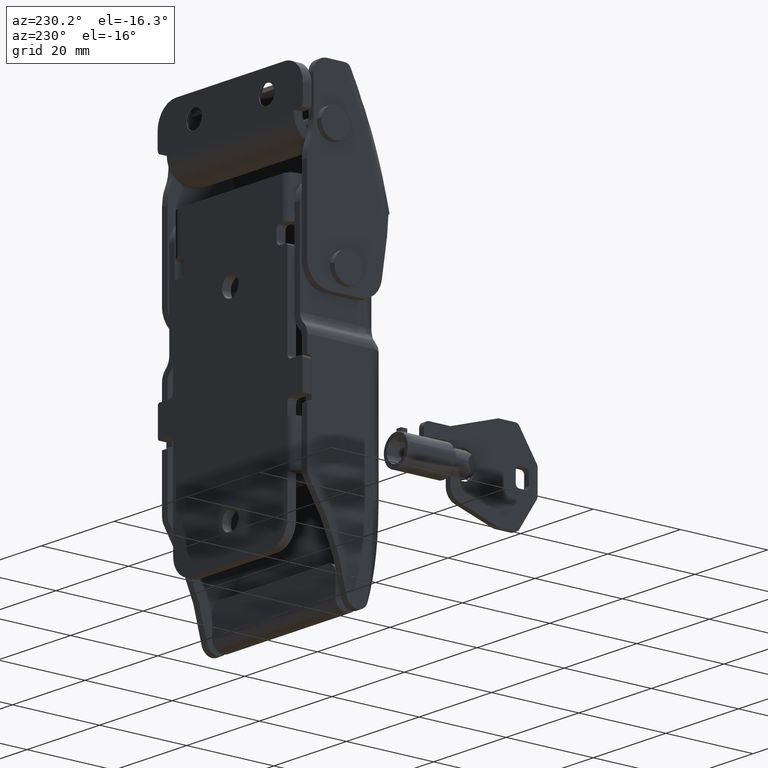
[diagram: clean part render]
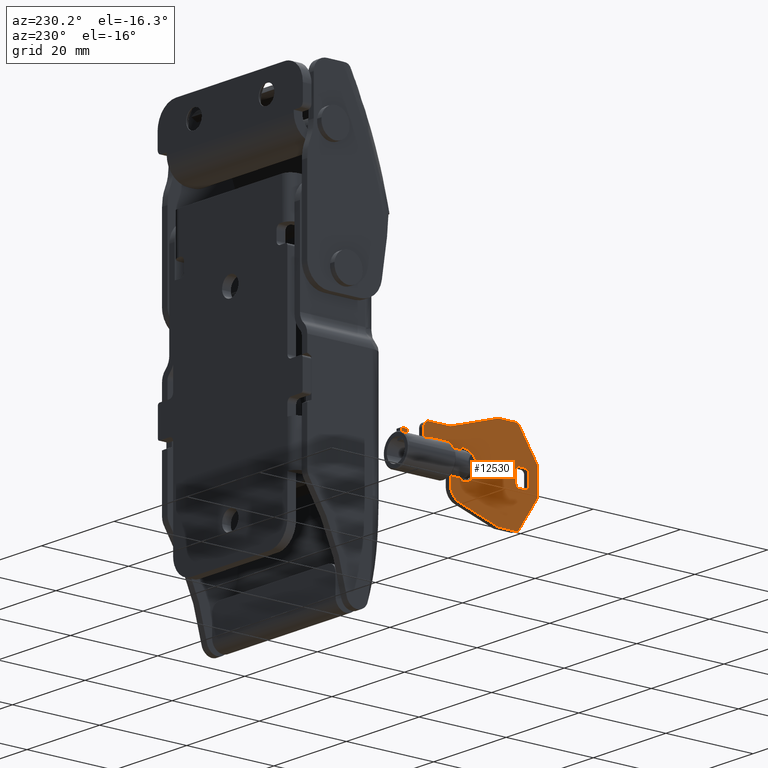
[diagram: same view with one face highlighted and labeled with its STEP entity id]
A machine part, auxiliary view. The second image highlights one B-rep face of the part: STEP entity #12530.
In plain terms, the highlighted face is a freeform B-spline surface patch.
Its self-contained STEP definition (entity closure, byte-faithful):
#10269=CARTESIAN_POINT('',(-0.650000000143480,-45.300000000002498,-19.560886742607501));
#10270=VERTEX_POINT('',#10269);
#10276=CARTESIAN_POINT('',(-0.650000000143480,-38.900000000002450,-19.560886742607501));
#10277=VERTEX_POINT('',#10276);
#10278=CARTESIAN_POINT('',(-0.650000000143480,-45.300000000002498,-19.560886742607501));
#10279=CARTESIAN_POINT('',(-0.650000000143480,-38.900000000002450,-19.560886742607501));
#10280=QUASI_UNIFORM_CURVE('',1,(#10278,#10279),.UNSPECIFIED.,.F.,.U.);
#10281=EDGE_CURVE('',#10270,#10277,#10280,.T.);
#10463=CARTESIAN_POINT('',(-0.650000000143480,-50.000000000002501,-25.620591536580601));
#10464=VERTEX_POINT('',#10463);
#10478=CARTESIAN_POINT('',(-0.650000000143530,-52.500000000002487,-25.620591536580601));
#10479=VERTEX_POINT('',#10478);
#10480=CARTESIAN_POINT('',(-0.650000000143480,-50.000000000002501,-25.620591536580601));
#10481=CARTESIAN_POINT('',(-0.650000000143530,-52.500000000002487,-25.620591536580601));
#10482=QUASI_UNIFORM_CURVE('',1,(#10480,#10481),.UNSPECIFIED.,.F.,.U.);
#10483=EDGE_CURVE('',#10464,#10479,#10482,.T.);
#10509=CARTESIAN_POINT('',(-0.650000000143480,-52.500000000002487,-20.379408464240999));
#10510=VERTEX_POINT('',#10509);
#10524=CARTESIAN_POINT('',(-0.650000000143530,-50.000000000002402,-20.379408464240999));
#10525=VERTEX_POINT('',#10524);
#10526=CARTESIAN_POINT('',(-0.650000000143480,-52.500000000002487,-20.379408464240999));
#10527=CARTESIAN_POINT('',(-0.650000000143530,-50.000000000002402,-20.379408464240999));
#10528=QUASI_UNIFORM_CURVE('',1,(#10526,#10527),.UNSPECIFIED.,.F.,.U.);
#10529=EDGE_CURVE('',#10510,#10525,#10528,.T.);
#10721=CARTESIAN_POINT('',(-0.650000000143480,-60.852052451472197,-13.047074220318001));
#10722=VERTEX_POINT('',#10721);
#10728=CARTESIAN_POINT('',(-0.650000000143480,-61.155256108749199,-13.000000000331260));
#10729=VERTEX_POINT('',#10728);
#10730=CARTESIAN_POINT('',(-0.650000000143480,-61.155256108749199,-13.000000000331260));
#10731=CARTESIAN_POINT('',(-0.650000000143480,-61.000000000001968,-13.000000000331264));
#10732=CARTESIAN_POINT('',(-0.650000000143480,-60.852052451472211,-13.047074220318009));
#10740=(BOUNDED_CURVE()B_SPLINE_CURVE(2,(#10730,#10731,#10732),.UNSPECIFIED.,.F.,.U.)CURVE()GEOMETRIC_REPRESENTATION_ITEM()QUASI_UNIFORM_CURVE()RATIONAL_B_SPLINE_CURVE((1.0,0.988161368404282,1.0))REPRESENTATION_ITEM(''));
#10741=EDGE_CURVE('',#10729,#10722,#10740,.T.);
#10782=CARTESIAN_POINT('',(-0.650000000143480,-64.954048787353102,-13.000000000331260));
#10783=VERTEX_POINT('',#10782);
#10789=CARTESIAN_POINT('',(-0.650000000143480,-65.795227262729696,-13.459242409017760));
#10790=VERTEX_POINT('',#10789);
#10791=CARTESIAN_POINT('',(-0.650000000143480,-65.795227262729668,-13.459242409017779));
#10792=CARTESIAN_POINT('',(-0.650000000143480,-65.500000000002615,-13.000000000331262));
#10793=CARTESIAN_POINT('',(-0.650000000143480,-64.954048787353102,-13.000000000331260));
#10801=(BOUNDED_CURVE()B_SPLINE_CURVE(2,(#10791,#10792,#10793),.UNSPECIFIED.,.F.,.U.)CURVE()GEOMETRIC_REPRESENTATION_ITEM()QUASI_UNIFORM_CURVE()RATIONAL_B_SPLINE_CURVE((1.0,0.877712251057680,1.0))REPRESENTATION_ITEM(''));
#10802=EDGE_CURVE('',#10790,#10783,#10801,.T.);
#10843=CARTESIAN_POINT('',(-0.650000000143480,-69.841178475378996,-19.752944295361349));
#10844=VERTEX_POINT('',#10843);
#10850=CARTESIAN_POINT('',(-0.650000000143480,-70.000000000002501,-20.293701886674800));
#10851=VERTEX_POINT('',#10850);
#10852=CARTESIAN_POINT('',(-0.650000000143480,-70.000000000002501,-20.293701886674800));
#10853=CARTESIAN_POINT('',(-0.650000000143480,-70.000000000002501,-20.000000000331109));
#10854=CARTESIAN_POINT('',(-0.650000000143480,-69.841178475379053,-19.752944295361310));
#10862=(BOUNDED_CURVE()B_SPLINE_CURVE(2,(#10852,#10853,#10854),.UNSPECIFIED.,.F.,.U.)CURVE()GEOMETRIC_REPRESENTATION_ITEM()QUASI_UNIFORM_CURVE()RATIONAL_B_SPLINE_CURVE((1.0,0.959473416874213,1.0))REPRESENTATION_ITEM(''));
#10863=EDGE_CURVE('',#10851,#10844,#10862,.T.);
#10904=CARTESIAN_POINT('',(-0.650000000143480,-61.155256108749498,-33.000000000331248));
#10905=VERTEX_POINT('',#10904);
#10911=CARTESIAN_POINT('',(-0.650000000143480,-60.852052451472503,-32.952925780344508));
#10912=VERTEX_POINT('',#10911);
#10913=CARTESIAN_POINT('',(-0.650000000143480,-60.852052451472503,-32.952925780344501));
#10914=CARTESIAN_POINT('',(-0.650000000143480,-61.000000000002274,-33.000000000331255));
#10915=CARTESIAN_POINT('',(-0.650000000143480,-61.155256108749498,-33.000000000331248));
#10923=(BOUNDED_CURVE()B_SPLINE_CURVE(2,(#10913,#10914,#10915),.UNSPECIFIED.,.F.,.U.)CURVE()GEOMETRIC_REPRESENTATION_ITEM()QUASI_UNIFORM_CURVE()RATIONAL_B_SPLINE_CURVE((1.0,0.988161368404282,1.0))REPRESENTATION_ITEM(''));
#10924=EDGE_CURVE('',#10912,#10905,#10923,.T.);
#10965=CARTESIAN_POINT('',(-0.650000000143480,-65.795227262729412,-32.540757591644748));
#10966=VERTEX_POINT('',#10965);
#10972=CARTESIAN_POINT('',(-0.650000000143480,-64.954048787352804,-33.000000000331248));
#10973=VERTEX_POINT('',#10972);
#10974=CARTESIAN_POINT('',(-0.650000000143480,-64.954048787352804,-33.000000000331248));
#10975=CARTESIAN_POINT('',(-0.650000000143480,-65.500000000002331,-33.000000000331248));
#10976=CARTESIAN_POINT('',(-0.650000000143480,-65.795227262729384,-32.540757591644727));
#10984=(BOUNDED_CURVE()B_SPLINE_CURVE(2,(#10974,#10975,#10976),.UNSPECIFIED.,.F.,.U.)CURVE()GEOMETRIC_REPRESENTATION_ITEM()QUASI_UNIFORM_CURVE()RATIONAL_B_SPLINE_CURVE((1.0,0.877712251057680,1.0))REPRESENTATION_ITEM(''));
#10985=EDGE_CURVE('',#10973,#10966,#10984,.T.);
#11026=CARTESIAN_POINT('',(-0.650000000143480,-70.000000000002501,-25.706298113987302));
#11027=VERTEX_POINT('',#11026);
#11033=CARTESIAN_POINT('',(-0.650000000143480,-69.841178475378996,-26.247055705300749));
#11034=VERTEX_POINT('',#11033);
#11035=CARTESIAN_POINT('',(-0.650000000143480,-69.841178475379053,-26.247055705300799));
#11036=CARTESIAN_POINT('',(-0.650000000143480,-70.000000000002501,-26.000000000330989));
#11037=CARTESIAN_POINT('',(-0.650000000143480,-70.000000000002501,-25.706298113987302));
#11045=(BOUNDED_CURVE()B_SPLINE_CURVE(2,(#11035,#11036,#11037),.UNSPECIFIED.,.F.,.U.)CURVE()GEOMETRIC_REPRESENTATION_ITEM()QUASI_UNIFORM_CURVE()RATIONAL_B_SPLINE_CURVE((1.0,0.959473416874213,1.0))REPRESENTATION_ITEM(''));
#11046=EDGE_CURVE('',#11034,#11027,#11045,.T.);
#11070=CARTESIAN_POINT('',(-0.650000000149476,-67.200000000002490,-21.000000000331251));
#11071=VERTEX_POINT('',#11070);
#11094=CARTESIAN_POINT('',(-0.650000000149476,-68.000000000002501,-21.800000000331249));
#11095=VERTEX_POINT('',#11094);
#11101=CARTESIAN_POINT('',(-0.650000000149476,-67.200000000002490,-21.000000000331251));
#11102=CARTESIAN_POINT('',(-0.650000000149476,-68.000000000002487,-21.000000000331251));
#11103=CARTESIAN_POINT('',(-0.650000000149476,-68.000000000002487,-21.800000000331249));
#11111=(BOUNDED_CURVE()B_SPLINE_CURVE(2,(#11101,#11102,#11103),.UNSPECIFIED.,.F.,.U.)CURVE()GEOMETRIC_REPRESENTATION_ITEM()QUASI_UNIFORM_CURVE()RATIONAL_B_SPLINE_CURVE((1.0,0.707106781186548,1.0))REPRESENTATION_ITEM(''));
#11112=EDGE_CURVE('',#11071,#11095,#11111,.T.);
#11122=CARTESIAN_POINT('',(-0.650000000149476,-68.000000000002501,-24.200000000331300));
#11123=VERTEX_POINT('',#11122);
#11124=CARTESIAN_POINT('',(-0.650000000149476,-68.000000000002501,-24.200000000331300));
#11125=CARTESIAN_POINT('',(-0.650000000149476,-68.000000000002501,-21.800000000331249));
#11126=QUASI_UNIFORM_CURVE('',1,(#11124,#11125),.UNSPECIFIED.,.F.,.U.);
#11127=EDGE_CURVE('',#11123,#11095,#11126,.T.);
#11175=CARTESIAN_POINT('',(-0.650000000149476,-67.200000000002490,-25.000000000331251));
#11176=VERTEX_POINT('',#11175);
#11182=CARTESIAN_POINT('',(-0.650000000149476,-68.000000000002487,-24.200000000331300));
#11183=CARTESIAN_POINT('',(-0.650000000149476,-68.000000000002487,-25.000000000331298));
#11184=CARTESIAN_POINT('',(-0.650000000149476,-67.200000000002490,-25.000000000331301));
#11192=(BOUNDED_CURVE()B_SPLINE_CURVE(2,(#11182,#11183,#11184),.UNSPECIFIED.,.F.,.U.)CURVE()GEOMETRIC_REPRESENTATION_ITEM()QUASI_UNIFORM_CURVE()RATIONAL_B_SPLINE_CURVE((1.0,0.707106781186548,1.0))REPRESENTATION_ITEM(''));
#11193=EDGE_CURVE('',#11123,#11176,#11192,.T.);
#11203=CARTESIAN_POINT('',(-0.650000000149476,-65.800000000002498,-25.000000000331301));
#11204=VERTEX_POINT('',#11203);
#11205=CARTESIAN_POINT('',(-0.650000000149476,-65.800000000002498,-25.000000000331301));
#11206=CARTESIAN_POINT('',(-0.650000000149476,-67.200000000002490,-25.000000000331251));
#11207=QUASI_UNIFORM_CURVE('',1,(#11205,#11206),.UNSPECIFIED.,.F.,.U.);
#11208=EDGE_CURVE('',#11204,#11176,#11207,.T.);
#11256=CARTESIAN_POINT('',(-0.650000000149476,-65.000000000002402,-24.200000000331300));
#11257=VERTEX_POINT('',#11256);
#11263=CARTESIAN_POINT('',(-0.650000000149476,-65.800000000002498,-25.000000000331301));
#11264=CARTESIAN_POINT('',(-0.650000000149476,-65.000000000002501,-25.000000000331298));
#11265=CARTESIAN_POINT('',(-0.650000000149476,-65.000000000002501,-24.200000000331300));
#11273=(BOUNDED_CURVE()B_SPLINE_CURVE(2,(#11263,#11264,#11265),.UNSPECIFIED.,.F.,.U.)CURVE()GEOMETRIC_REPRESENTATION_ITEM()QUASI_UNIFORM_CURVE()RATIONAL_B_SPLINE_CURVE((1.0,0.707106781186548,1.0))REPRESENTATION_ITEM(''));
#11274=EDGE_CURVE('',#11204,#11257,#11273,.T.);
#11284=CARTESIAN_POINT('',(-0.650000000149476,-65.000000000002501,-21.800000000331249));
#11285=VERTEX_POINT('',#11284);
#11286=CARTESIAN_POINT('',(-0.650000000149476,-65.000000000002501,-21.800000000331249));
#11287=CARTESIAN_POINT('',(-0.650000000149476,-65.000000000002402,-24.200000000331300));
#11288=QUASI_UNIFORM_CURVE('',1,(#11286,#11287),.UNSPECIFIED.,.F.,.U.);
#11289=EDGE_CURVE('',#11285,#11257,#11288,.T.);
#11337=CARTESIAN_POINT('',(-0.650000000149476,-65.800000000002498,-21.000000000331251));
#11338=VERTEX_POINT('',#11337);
#11344=CARTESIAN_POINT('',(-0.650000000149476,-65.000000000002501,-21.800000000331249));
#11345=CARTESIAN_POINT('',(-0.650000000149476,-65.000000000002501,-21.000000000331251));
#11346=CARTESIAN_POINT('',(-0.650000000149476,-65.800000000002498,-21.000000000331251));
#11354=(BOUNDED_CURVE()B_SPLINE_CURVE(2,(#11344,#11345,#11346),.UNSPECIFIED.,.F.,.U.)CURVE()GEOMETRIC_REPRESENTATION_ITEM()QUASI_UNIFORM_CURVE()RATIONAL_B_SPLINE_CURVE((1.0,0.707106781186548,1.0))REPRESENTATION_ITEM(''));
#11355=EDGE_CURVE('',#11285,#11338,#11354,.T.);
#11365=CARTESIAN_POINT('',(-0.650000000149476,-67.200000000002490,-21.000000000331251));
#11366=CARTESIAN_POINT('',(-0.650000000149476,-65.800000000002498,-21.000000000331251));
#11367=QUASI_UNIFORM_CURVE('',1,(#11365,#11366),.UNSPECIFIED.,.F.,.U.);
#11368=EDGE_CURVE('',#11071,#11338,#11367,.T.);
#11385=CARTESIAN_POINT('',(-0.650000000143480,-45.100000000002403,-16.500000000331202));
#11386=VERTEX_POINT('',#11385);
#11387=CARTESIAN_POINT('',(-0.650000000143480,-50.000000000002402,-16.500000000331251));
#11388=VERTEX_POINT('',#11387);
#11389=CARTESIAN_POINT('',(-0.650000000143480,-45.100000000002403,-16.500000000331202));
#11390=CARTESIAN_POINT('',(-0.650000000143480,-50.000000000002402,-16.500000000331251));
#11391=QUASI_UNIFORM_CURVE('',1,(#11389,#11390),.UNSPECIFIED.,.F.,.U.);
#11392=EDGE_CURVE('',#11386,#11388,#11391,.T.);
#11430=CARTESIAN_POINT('',(-0.650000000143480,-43.900000000002450,-17.700000000331201));
#11431=VERTEX_POINT('',#11430);
#11432=CARTESIAN_POINT('',(-0.650000000143480,-43.900000000002400,-17.700000000331201));
#11433=CARTESIAN_POINT('',(-0.650000000143480,-43.900000000002400,-16.500000000331202));
#11434=CARTESIAN_POINT('',(-0.650000000143480,-45.100000000002403,-16.500000000331202));
#11442=(BOUNDED_CURVE()B_SPLINE_CURVE(2,(#11432,#11433,#11434),.UNSPECIFIED.,.F.,.U.)CURVE()GEOMETRIC_REPRESENTATION_ITEM()QUASI_UNIFORM_CURVE()RATIONAL_B_SPLINE_CURVE((1.0,0.707106781186547,1.0))REPRESENTATION_ITEM(''));
#11443=EDGE_CURVE('',#11431,#11386,#11442,.T.);
#11474=CARTESIAN_POINT('',(-0.650000000143480,-43.900000000002450,-19.556255671833501));
#11475=VERTEX_POINT('',#11474);
#11476=CARTESIAN_POINT('',(-0.650000000143480,-43.900000000002450,-19.556255671833501));
#11477=CARTESIAN_POINT('',(-0.650000000143480,-43.900000000002450,-17.700000000331201));
#11478=QUASI_UNIFORM_CURVE('',1,(#11476,#11477),.UNSPECIFIED.,.F.,.U.);
#11479=EDGE_CURVE('',#11475,#11431,#11478,.T.);
#11502=CARTESIAN_POINT('',(-0.650000000143480,-40.100000000002353,-19.556255671833501));
#11503=VERTEX_POINT('',#11502);
#11504=CARTESIAN_POINT('',(-0.650000000143480,-40.100000000002353,-19.556255671833501));
#11505=CARTESIAN_POINT('',(-0.650000000143480,-43.900000000002450,-19.556255671833501));
#11506=QUASI_UNIFORM_CURVE('',1,(#11504,#11505),.UNSPECIFIED.,.F.,.U.);
#11507=EDGE_CURVE('',#11503,#11475,#11506,.T.);
#11530=CARTESIAN_POINT('',(-0.650000000143480,-40.100000000002353,-18.800000000331249));
#11531=VERTEX_POINT('',#11530);
#11532=CARTESIAN_POINT('',(-0.650000000143480,-40.100000000002353,-18.800000000331249));
#11533=CARTESIAN_POINT('',(-0.650000000143480,-40.100000000002353,-19.556255671833501));
#11534=QUASI_UNIFORM_CURVE('',1,(#11532,#11533),.UNSPECIFIED.,.F.,.U.);
#11535=EDGE_CURVE('',#11531,#11503,#11534,.T.);
#11558=CARTESIAN_POINT('',(-0.650000000143480,-38.700000000002603,-18.800000000331249));
#11559=VERTEX_POINT('',#11558);
#11560=CARTESIAN_POINT('',(-0.650000000143480,-38.700000000002603,-18.800000000331249));
#11561=CARTESIAN_POINT('',(-0.650000000143480,-40.100000000002353,-18.800000000331249));
#11562=QUASI_UNIFORM_CURVE('',1,(#11560,#11561),.UNSPECIFIED.,.F.,.U.);
#11563=EDGE_CURVE('',#11559,#11531,#11562,.T.);
#11586=CARTESIAN_POINT('',(-0.650000000143480,-38.700000000002248,-19.350000000331050));
#11587=VERTEX_POINT('',#11586);
#11588=CARTESIAN_POINT('',(-0.650000000143480,-38.700000000002248,-19.350000000331050));
#11589=CARTESIAN_POINT('',(-0.650000000143480,-38.700000000002603,-18.800000000331249));
#11590=QUASI_UNIFORM_CURVE('',1,(#11588,#11589),.UNSPECIFIED.,.F.,.U.);
#11591=EDGE_CURVE('',#11587,#11559,#11590,.T.);
#11614=CARTESIAN_POINT('',(-0.650000000143480,-38.900000000002450,-19.450000000331102));
#11615=VERTEX_POINT('',#11614);
#11616=CARTESIAN_POINT('',(-0.650000000143480,-38.900000000002450,-19.450000000331102));
#11617=CARTESIAN_POINT('',(-0.650000000143480,-38.700000000002248,-19.350000000331050));
#11618=QUASI_UNIFORM_CURVE('',1,(#11616,#11617),.UNSPECIFIED.,.F.,.U.);
#11619=EDGE_CURVE('',#11615,#11587,#11618,.T.);
#11643=CARTESIAN_POINT('',(-0.650000000143480,-38.900000000002450,-19.560886742607501));
#11644=CARTESIAN_POINT('',(-0.650000000143480,-38.900000000002450,-19.450000000331102));
#11645=QUASI_UNIFORM_CURVE('',1,(#11643,#11644),.UNSPECIFIED.,.F.,.U.);
#11646=EDGE_CURVE('',#10277,#11615,#11645,.T.);
#11698=CARTESIAN_POINT('',(-0.650000000143480,-45.300000000002498,-19.400000000331300));
#11699=VERTEX_POINT('',#11698);
#11700=CARTESIAN_POINT('',(-0.650000000143480,-45.300000000002498,-19.400000000331300));
#11701=CARTESIAN_POINT('',(-0.650000000143480,-45.300000000002498,-19.560886742607501));
#11702=QUASI_UNIFORM_CURVE('',1,(#11700,#11701),.UNSPECIFIED.,.F.,.U.);
#11703=EDGE_CURVE('',#11699,#10270,#11702,.T.);
#11746=CARTESIAN_POINT('',(-0.650000000143480,-49.800000000002498,-19.400000000331300));
#11747=VERTEX_POINT('',#11746);
#11748=CARTESIAN_POINT('',(-0.650000000143480,-49.800000000002498,-19.400000000331300));
#11749=CARTESIAN_POINT('',(-0.650000000143480,-45.300000000002498,-19.400000000331300));
#11750=QUASI_UNIFORM_CURVE('',1,(#11748,#11749),.UNSPECIFIED.,.F.,.U.);
#11751=EDGE_CURVE('',#11747,#11699,#11750,.T.);
#11783=CARTESIAN_POINT('',(-0.650000000143480,-50.000000000002402,-19.600000000331299));
#11784=VERTEX_POINT('',#11783);
#11785=CARTESIAN_POINT('',(-0.650000000143480,-49.800000000002498,-19.400000000331300));
#11786=CARTESIAN_POINT('',(-0.650000000143480,-50.000000000002501,-19.400000000331303));
#11787=CARTESIAN_POINT('',(-0.650000000143480,-50.000000000002487,-19.600000000331299));
#11795=(BOUNDED_CURVE()B_SPLINE_CURVE(2,(#11785,#11786,#11787),.UNSPECIFIED.,.F.,.U.)CURVE()GEOMETRIC_REPRESENTATION_ITEM()QUASI_UNIFORM_CURVE()RATIONAL_B_SPLINE_CURVE((1.0,0.707106781186548,1.0))REPRESENTATION_ITEM(''));
#11796=EDGE_CURVE('',#11747,#11784,#11795,.T.);
#11828=CARTESIAN_POINT('',(-0.650000000143530,-50.000000000002402,-20.379408464240999));
#11829=CARTESIAN_POINT('',(-0.650000000143480,-50.000000000002402,-19.600000000331299));
#11830=QUASI_UNIFORM_CURVE('',1,(#11828,#11829),.UNSPECIFIED.,.F.,.U.);
#11831=EDGE_CURVE('',#10525,#11784,#11830,.T.);
#11855=CARTESIAN_POINT('',(-0.650000000143480,-52.500000000002487,-19.900000000331200));
#11856=VERTEX_POINT('',#11855);
#11862=CARTESIAN_POINT('',(-0.650000000143480,-52.500000000002487,-19.900000000331200));
#11863=CARTESIAN_POINT('',(-0.650000000143480,-52.500000000002487,-20.379408464240999));
#11864=QUASI_UNIFORM_CURVE('',1,(#11862,#11863),.UNSPECIFIED.,.F.,.U.);
#11865=EDGE_CURVE('',#11856,#10510,#11864,.T.);
#11875=CARTESIAN_POINT('',(-0.650000000143480,-52.905004173628093,-19.900000000331250));
#11876=VERTEX_POINT('',#11875);
#11877=CARTESIAN_POINT('',(-0.650000000143480,-52.905004173628093,-19.900000000331250));
#11878=CARTESIAN_POINT('',(-0.650000000143480,-52.500000000002487,-19.900000000331200));
#11879=QUASI_UNIFORM_CURVE('',1,(#11877,#11878),.UNSPECIFIED.,.F.,.U.);
#11880=EDGE_CURVE('',#11876,#11856,#11879,.T.);
#11912=CARTESIAN_POINT('',(-0.650000000143480,-55.900000000002500,-22.200000000331300));
#11913=VERTEX_POINT('',#11912);
#11914=CARTESIAN_POINT('',(-0.650000000143480,-52.905004173628093,-19.900000000331250));
#11915=CARTESIAN_POINT('',(-0.650000000143480,-55.285641881771880,-19.900000000331246));
#11916=CARTESIAN_POINT('',(-0.650000000143480,-55.900000000002500,-22.200000000331300));
#11924=(BOUNDED_CURVE()B_SPLINE_CURVE(2,(#11914,#11915,#11916),.UNSPECIFIED.,.F.,.U.)CURVE()GEOMETRIC_REPRESENTATION_ITEM()QUASI_UNIFORM_CURVE()RATIONAL_B_SPLINE_CURVE((1.0,0.793115538912527,1.0))REPRESENTATION_ITEM(''));
#11925=EDGE_CURVE('',#11876,#11913,#11924,.T.);
#11956=CARTESIAN_POINT('',(-0.650000000143480,-55.900000000002500,-23.800000000331249));
#11957=VERTEX_POINT('',#11956);
#11958=CARTESIAN_POINT('',(-0.650000000143480,-55.900000000002500,-23.800000000331249));
#11959=CARTESIAN_POINT('',(-0.650000000143480,-55.900000000002500,-22.200000000331300));
#11960=QUASI_UNIFORM_CURVE('',1,(#11958,#11959),.UNSPECIFIED.,.F.,.U.);
#11961=EDGE_CURVE('',#11957,#11913,#11960,.T.);
#11993=CARTESIAN_POINT('',(-0.650000000143480,-52.905004173628093,-26.100000000331299));
#11994=VERTEX_POINT('',#11993);
#11995=CARTESIAN_POINT('',(-0.650000000143480,-55.900000000002493,-23.800000000331249));
#11996=CARTESIAN_POINT('',(-0.650000000143480,-55.285641881771838,-26.100000000331249));
#11997=CARTESIAN_POINT('',(-0.650000000143480,-52.905004173628093,-26.100000000331249));
#12005=(BOUNDED_CURVE()B_SPLINE_CURVE(2,(#11995,#11996,#11997),.UNSPECIFIED.,.F.,.U.)CURVE()GEOMETRIC_REPRESENTATION_ITEM()QUASI_UNIFORM_CURVE()RATIONAL_B_SPLINE_CURVE((1.0,0.793115538912532,1.0))REPRESENTATION_ITEM(''));
#12006=EDGE_CURVE('',#11957,#11994,#12005,.T.);
#12037=CARTESIAN_POINT('',(-0.650000000143480,-52.500000000002487,-26.100000000331299));
#12038=VERTEX_POINT('',#12037);
#12039=CARTESIAN_POINT('',(-0.650000000143480,-52.500000000002487,-26.100000000331299));
#12040=CARTESIAN_POINT('',(-0.650000000143480,-52.905004173628093,-26.100000000331299));
#12041=QUASI_UNIFORM_CURVE('',1,(#12039,#12040),.UNSPECIFIED.,.F.,.U.);
#12042=EDGE_CURVE('',#12038,#11994,#12041,.T.);
#12066=CARTESIAN_POINT('',(-0.650000000143530,-52.500000000002487,-25.620591536580601));
#12067=CARTESIAN_POINT('',(-0.650000000143480,-52.500000000002487,-26.100000000331299));
#12068=QUASI_UNIFORM_CURVE('',1,(#12066,#12067),.UNSPECIFIED.,.F.,.U.);
#12069=EDGE_CURVE('',#10479,#12038,#12068,.T.);
#12093=CARTESIAN_POINT('',(-0.650000000143480,-50.000000000002501,-27.306346441981699));
#12094=VERTEX_POINT('',#12093);
#12100=CARTESIAN_POINT('',(-0.650000000143480,-50.000000000002501,-27.306346441981699));
#12101=CARTESIAN_POINT('',(-0.650000000143480,-50.000000000002501,-25.620591536580601));
#12102=QUASI_UNIFORM_CURVE('',1,(#12100,#12101),.UNSPECIFIED.,.F.,.U.);
#12103=EDGE_CURVE('',#12094,#10464,#12102,.T.);
#12122=CARTESIAN_POINT('',(-0.650000000143480,-52.090389028171700,-30.165123782021499));
#12123=VERTEX_POINT('',#12122);
#12124=CARTESIAN_POINT('',(-0.650000000143480,-52.090389028171693,-30.165123782021531));
#12125=CARTESIAN_POINT('',(-0.650000000143480,-50.000000000002380,-29.500000000331411));
#12126=CARTESIAN_POINT('',(-0.650000000143480,-50.000000000002402,-27.306346441981699));
#12134=(BOUNDED_CURVE()B_SPLINE_CURVE(2,(#12124,#12125,#12126),.UNSPECIFIED.,.F.,.U.)CURVE()GEOMETRIC_REPRESENTATION_ITEM()QUASI_UNIFORM_CURVE()RATIONAL_B_SPLINE_CURVE((1.0,0.807218575503842,1.0))REPRESENTATION_ITEM(''));
#12135=EDGE_CURVE('',#12123,#12094,#12134,.T.);
#12172=CARTESIAN_POINT('',(-0.650000000143480,-60.852052451472503,-32.952925780344508));
#12173=CARTESIAN_POINT('',(-0.650000000143480,-52.090389028171700,-30.165123782021499));
#12174=QUASI_UNIFORM_CURVE('',1,(#12172,#12173),.UNSPECIFIED.,.F.,.U.);
#12175=EDGE_CURVE('',#10912,#12123,#12174,.T.);
#12192=CARTESIAN_POINT('',(-0.650000000143480,-64.954048787352804,-33.000000000331248));
#12193=CARTESIAN_POINT('',(-0.650000000143480,-61.155256108749498,-33.000000000331248));
#12194=QUASI_UNIFORM_CURVE('',1,(#12192,#12193),.UNSPECIFIED.,.F.,.U.);
#12195=EDGE_CURVE('',#10973,#10905,#12194,.T.);
#12212=CARTESIAN_POINT('',(-0.650000000143480,-69.841178475378996,-26.247055705300749));
#12213=CARTESIAN_POINT('',(-0.650000000143480,-65.795227262729412,-32.540757591644748));
#12214=QUASI_UNIFORM_CURVE('',1,(#12212,#12213),.UNSPECIFIED.,.F.,.U.);
#12215=EDGE_CURVE('',#11034,#10966,#12214,.T.);
#12226=CARTESIAN_POINT('',(-0.650000000143480,-70.000000000002501,-20.293701886674800));
#12227=CARTESIAN_POINT('',(-0.650000000143480,-70.000000000002501,-25.706298113987302));
#12228=QUASI_UNIFORM_CURVE('',1,(#12226,#12227),.UNSPECIFIED.,.F.,.U.);
#12229=EDGE_CURVE('',#10851,#11027,#12228,.T.);
#12246=CARTESIAN_POINT('',(-0.650000000143480,-65.795227262729696,-13.459242409017760));
#12247=CARTESIAN_POINT('',(-0.650000000143480,-69.841178475378996,-19.752944295361349));
#12248=QUASI_UNIFORM_CURVE('',1,(#12246,#12247),.UNSPECIFIED.,.F.,.U.);
#12249=EDGE_CURVE('',#10790,#10844,#12248,.T.);
#12266=CARTESIAN_POINT('',(-0.650000000143480,-61.155256108749199,-13.000000000331260));
#12267=CARTESIAN_POINT('',(-0.650000000143480,-64.954048787353102,-13.000000000331260));
#12268=QUASI_UNIFORM_CURVE('',1,(#12266,#12267),.UNSPECIFIED.,.F.,.U.);
#12269=EDGE_CURVE('',#10729,#10783,#12268,.T.);
#12286=CARTESIAN_POINT('',(-0.650000000143480,-50.000000000002402,-16.500000000331251));
#12287=CARTESIAN_POINT('',(-0.650000000143480,-60.852052451472197,-13.047074220318001));
#12288=QUASI_UNIFORM_CURVE('',1,(#12286,#12287),.UNSPECIFIED.,.F.,.U.);
#12289=EDGE_CURVE('',#11388,#10722,#12288,.T.);
#12475=CARTESIAN_POINT('',(-0.650000000143530,-71.563434827511458,-33.998999961567378));
#12476=CARTESIAN_POINT('',(-0.650000000143530,-37.136566571712329,-33.998999961567378));
#12477=CARTESIAN_POINT('',(-0.650000000143530,-71.563434827511458,-12.000999502653340));
#12478=CARTESIAN_POINT('',(-0.650000000143530,-37.136566571712329,-12.000999502653340));
#12479=B_SPLINE_SURFACE_WITH_KNOTS('',1,1,((#12475,#12477),(#12476,#12478)),.UNSPECIFIED.,.F.,.F.,.U.,(2,2),(2,2),(0.0,34.426868255799128),(0.0,21.998000458914039),.UNSPECIFIED.);
#12480=ORIENTED_EDGE('',*,*,#12215,.F.);
#12481=ORIENTED_EDGE('',*,*,#11046,.T.);
#12482=ORIENTED_EDGE('',*,*,#12229,.F.);
#12483=ORIENTED_EDGE('',*,*,#10863,.T.);
#12484=ORIENTED_EDGE('',*,*,#12249,.F.);
#12485=ORIENTED_EDGE('',*,*,#10802,.T.);
#12486=ORIENTED_EDGE('',*,*,#12269,.F.);
#12487=ORIENTED_EDGE('',*,*,#10741,.T.);
#12488=ORIENTED_EDGE('',*,*,#12289,.F.);
#12489=ORIENTED_EDGE('',*,*,#11392,.F.);
#12490=ORIENTED_EDGE('',*,*,#11443,.F.);
#12491=ORIENTED_EDGE('',*,*,#11479,.F.);
#12492=ORIENTED_EDGE('',*,*,#11507,.F.);
#12493=ORIENTED_EDGE('',*,*,#11535,.F.);
#12494=ORIENTED_EDGE('',*,*,#11563,.F.);
#12495=ORIENTED_EDGE('',*,*,#11591,.F.);
#12496=ORIENTED_EDGE('',*,*,#11619,.F.);
#12497=ORIENTED_EDGE('',*,*,#11646,.F.);
#12498=ORIENTED_EDGE('',*,*,#10281,.F.);
#12499=ORIENTED_EDGE('',*,*,#11703,.F.);
#12500=ORIENTED_EDGE('',*,*,#11751,.F.);
#12501=ORIENTED_EDGE('',*,*,#11796,.T.);
#12502=ORIENTED_EDGE('',*,*,#11831,.F.);
#12503=ORIENTED_EDGE('',*,*,#10529,.F.);
#12504=ORIENTED_EDGE('',*,*,#11865,.F.);
#12505=ORIENTED_EDGE('',*,*,#11880,.F.);
#12506=ORIENTED_EDGE('',*,*,#11925,.T.);
#12507=ORIENTED_EDGE('',*,*,#11961,.F.);
#12508=ORIENTED_EDGE('',*,*,#12006,.T.);
#12509=ORIENTED_EDGE('',*,*,#12042,.F.);
#12510=ORIENTED_EDGE('',*,*,#12069,.F.);
#12511=ORIENTED_EDGE('',*,*,#10483,.F.);
#12512=ORIENTED_EDGE('',*,*,#12103,.F.);
#12513=ORIENTED_EDGE('',*,*,#12135,.F.);
#12514=ORIENTED_EDGE('',*,*,#12175,.F.);
#12515=ORIENTED_EDGE('',*,*,#10924,.T.);
#12516=ORIENTED_EDGE('',*,*,#12195,.F.);
#12517=ORIENTED_EDGE('',*,*,#10985,.T.);
#12518=EDGE_LOOP('',(#12480,#12481,#12482,#12483,#12484,#12485,#12486,#12487,#12488,#12489,#12490,#12491,#12492,#12493,#12494,#12495,#12496,#12497,#12498,#12499,#12500,#12501,#12502,#12503,#12504,#12505,#12506,#12507,#12508,#12509,#12510,#12511,#12512,#12513,#12514,#12515,#12516,#12517));
#12519=FACE_OUTER_BOUND('',#12518,.T.);
#12520=ORIENTED_EDGE('',*,*,#11368,.F.);
#12521=ORIENTED_EDGE('',*,*,#11112,.T.);
#12522=ORIENTED_EDGE('',*,*,#11127,.F.);
#12523=ORIENTED_EDGE('',*,*,#11193,.T.);
#12524=ORIENTED_EDGE('',*,*,#11208,.F.);
#12525=ORIENTED_EDGE('',*,*,#11274,.T.);
#12526=ORIENTED_EDGE('',*,*,#11289,.F.);
#12527=ORIENTED_EDGE('',*,*,#11355,.T.);
#12528=EDGE_LOOP('',(#12520,#12521,#12522,#12523,#12524,#12525,#12526,#12527));
#12529=FACE_BOUND('',#12528,.T.);
#12530=ADVANCED_FACE('',(#12519,#12529),#12479,.F.);